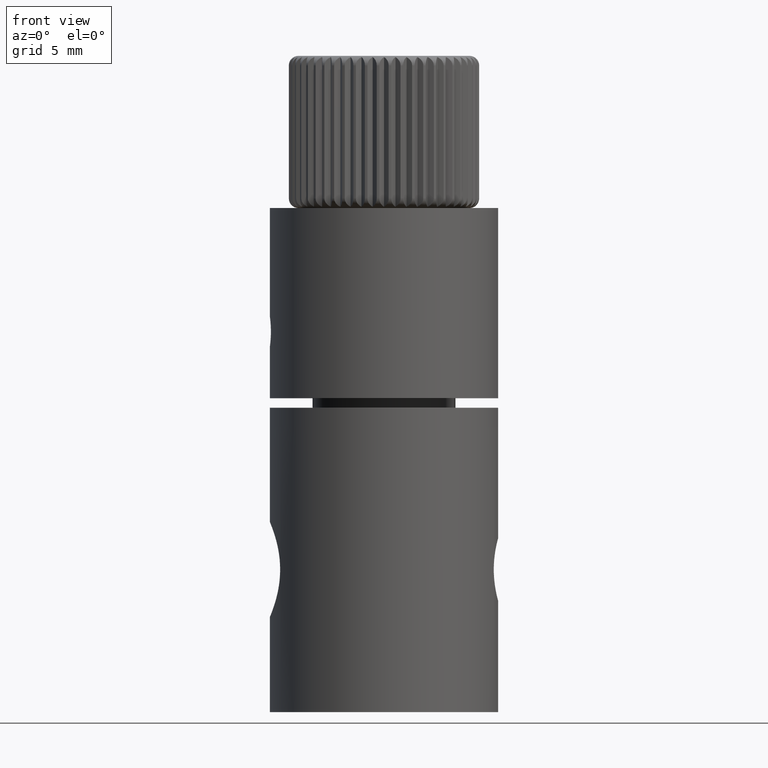
[diagram: clean part render]
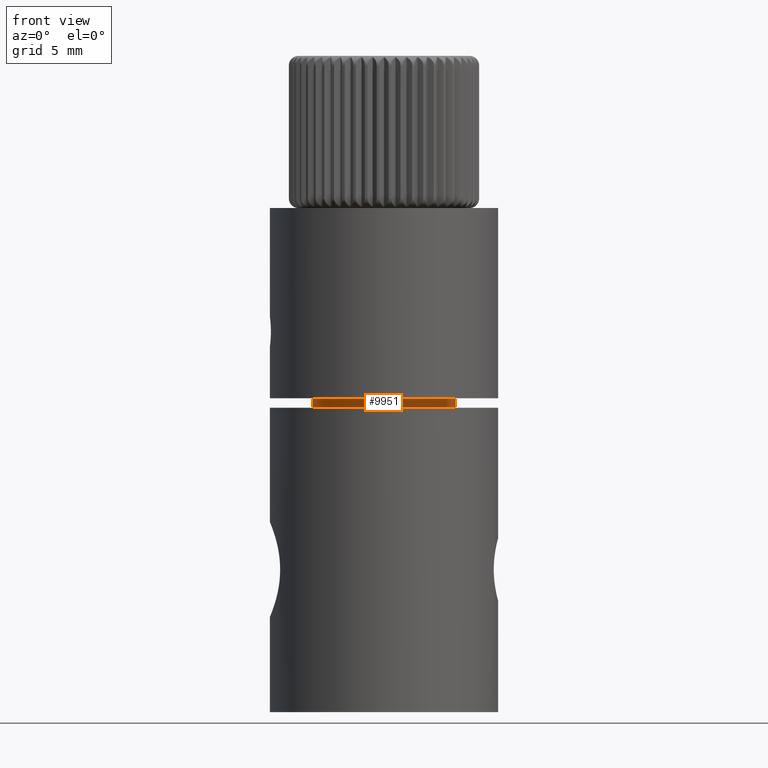
[diagram: same view with one face highlighted and labeled with its STEP entity id]
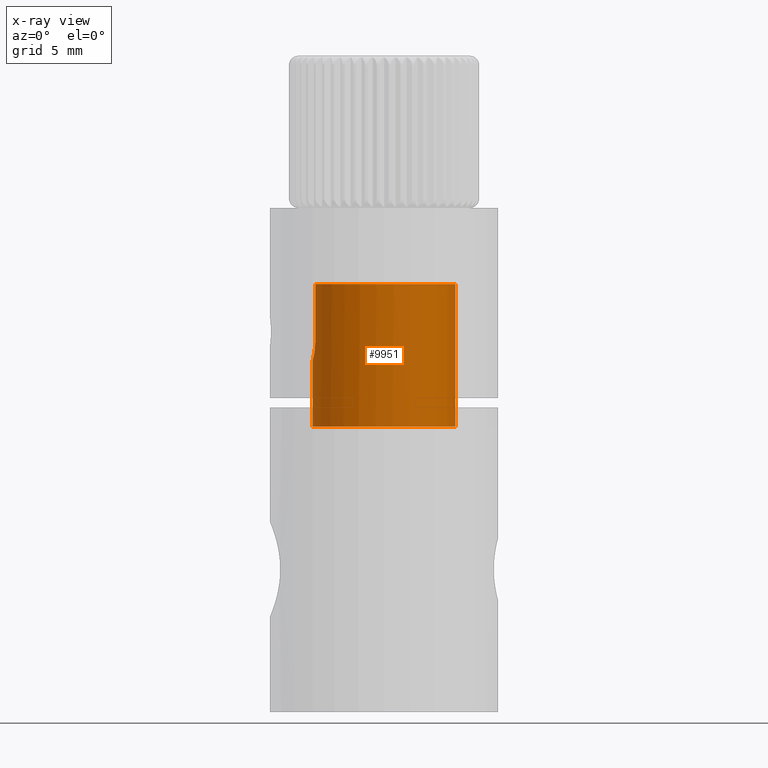
[diagram: x-ray of the same camera — body ghosted, the highlighted face saturated]
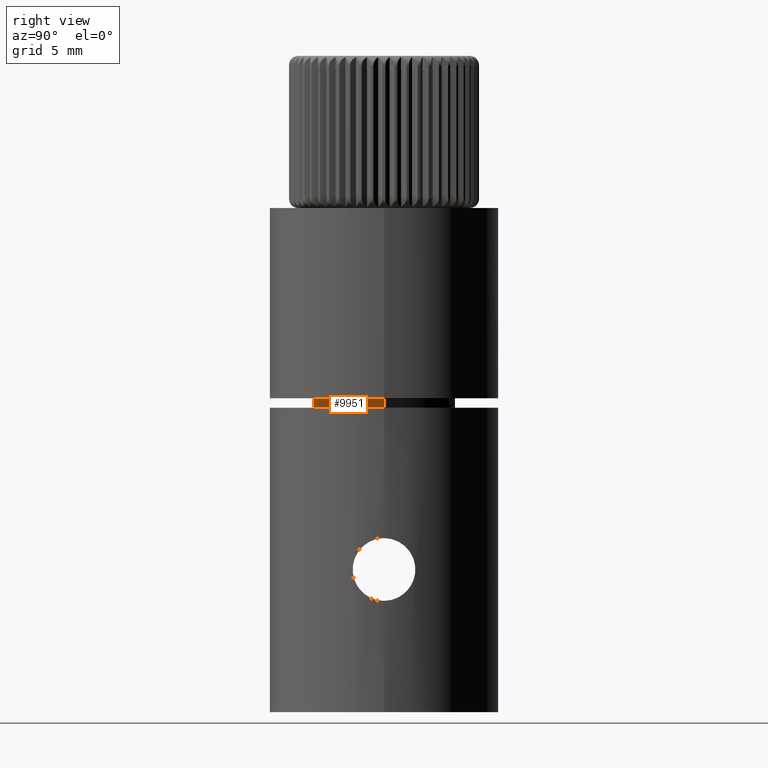
[diagram: same view with one face highlighted and labeled with its STEP entity id]
A machine part, front view. The second image highlights one B-rep face of the part: STEP entity #9951.
The next image is the same camera in x-ray: the body ghosted, the highlighted face saturated — about 1% of this face is hidden behind the body in this view.
A second angle (right view) of the same face is appended — the face is thin or edge-on in the first view.
In plain terms, the highlighted cylindrical surface (partial cylindrical patch) has radius 3.75 mm, axis along (-0, -0, -1).
Its self-contained STEP definition (entity closure, byte-faithful):
#183 = AXIS2_PLACEMENT_3D ( 'NONE', #8876, #10571, #9910 ) ;
#501 = EDGE_CURVE ( 'NONE', #7077, #6086, #3677, .T. ) ;
#827 = CARTESIAN_POINT ( 'NONE',  ( -3.647214717622833100, -0.8920625803220753000, 18.97787512190352600 ) ) ;
#852 = CARTESIAN_POINT ( 'NONE',  ( -3.749999999999997300, 0.0000000000000000000, 15.00000000000000000 ) ) ;
#853 = LINE ( 'NONE', #8708, #7245 ) ;
#1820 = AXIS2_PLACEMENT_3D ( 'NONE', #8958, #4755, #2291 ) ;
#1866 = CYLINDRICAL_SURFACE ( 'NONE', #1820, 3.749999999999997300 ) ;
#2117 = CIRCLE ( 'NONE', #3729, 3.749999999999996900 ) ;
#2291 = DIRECTION ( 'NONE',  ( -1.000000000000000000, 0.0000000000000000000, 0.0000000000000000000 ) ) ;
#2411 = CARTESIAN_POINT ( 'NONE',  ( -3.614208073700237100, -1.000000000000000000, 22.50000000000000000 ) ) ;
#2490 = CARTESIAN_POINT ( 'NONE',  ( -3.614208073700238000, -1.000000000000000200, 19.23463870924432200 ) ) ;
#2518 = EDGE_CURVE ( 'NONE', #6086, #5244, #853, .T. ) ;
#2984 = CARTESIAN_POINT ( 'NONE',  ( 3.749999999999997300, 4.592425496802571000E-016, -1.657192075796718000 ) ) ;
#3601 = EDGE_CURVE ( 'NONE', #10554, #10135, #8690, .T. ) ;
#3643 = CARTESIAN_POINT ( 'NONE',  ( -3.614208073700237100, -1.000000000000000000, 19.50000000000000000 ) ) ;
#3677 = B_SPLINE_CURVE_WITH_KNOTS ( 'NONE', 3,
 ( #9220, #4107, #9940, #4038, #5192, #827, #2490, #11080 ),
 .UNSPECIFIED., .F., .F.,
 ( 4, 2, 2, 4 ),
 ( 0.001570761871664251600, 0.001962993263202366700, 0.002355224654740481400, 0.003139687437816710800 ),
 .UNSPECIFIED. ) ;
#3729 = AXIS2_PLACEMENT_3D ( 'NONE', #6685, #10983, #5875 ) ;
#4038 = CARTESIAN_POINT ( 'NONE',  ( -3.717854546248310100, -0.5049173250389881200, 18.62688647372285900 ) ) ;
#4107 = CARTESIAN_POINT ( 'NONE',  ( -3.749999999999975100, -0.1310145707168422200, 18.50000000000008500 ) ) ;
#4755 = DIRECTION ( 'NONE',  ( -0.0000000000000000000, -0.0000000000000000000, -1.000000000000000000 ) ) ;
#4797 = VECTOR ( 'NONE', #9309, 1000.000000000000000 ) ;
#5192 = CARTESIAN_POINT ( 'NONE',  ( -3.700473217319293800, -0.6147037325545191600, 18.70047712348667800 ) ) ;
#5244 = VERTEX_POINT ( 'NONE', #2411 ) ;
#5375 = ORIENTED_EDGE ( 'NONE', *, *, #6602, .T. ) ;
#5412 = ORIENTED_EDGE ( 'NONE', *, *, #10735, .F. ) ;
#5875 = DIRECTION ( 'NONE',  ( -1.000000000000000000, 0.0000000000000000000, 0.0000000000000000000 ) ) ;
#6086 = VERTEX_POINT ( 'NONE', #3643 ) ;
#6569 = ORIENTED_EDGE ( 'NONE', *, *, #3601, .F. ) ;
#6602 = EDGE_CURVE ( 'NONE', #7077, #10135, #7047, .T. ) ;
#6685 = CARTESIAN_POINT ( 'NONE',  ( 0.0000000000000000000, 0.0000000000000000000, 22.50000000000000000 ) ) ;
#6812 = ORIENTED_EDGE ( 'NONE', *, *, #2518, .F. ) ;
#7047 = LINE ( 'NONE', #9381, #4797 ) ;
#7051 = DIRECTION ( 'NONE',  ( 0.0000000000000000000, 0.0000000000000000000, 1.000000000000000000 ) ) ;
#7077 = VERTEX_POINT ( 'NONE', #10226 ) ;
#7245 = VECTOR ( 'NONE', #7051, 1000.000000000000000 ) ;
#8686 = VERTEX_POINT ( 'NONE', #10349 ) ;
#8690 = CIRCLE ( 'NONE', #183, 3.749999999999997300 ) ;
#8708 = CARTESIAN_POINT ( 'NONE',  ( -3.614208073700237100, -1.000000000000000000, -1.657192075796718000 ) ) ;
#8876 = CARTESIAN_POINT ( 'NONE',  ( 0.0000000000000000000, 0.0000000000000000000, 15.00000000000000000 ) ) ;
#8958 = CARTESIAN_POINT ( 'NONE',  ( 0.0000000000000000000, 0.0000000000000000000, -1.657192075796718000 ) ) ;
#9077 = EDGE_CURVE ( 'NONE', #8686, #5244, #2117, .T. ) ;
#9220 = CARTESIAN_POINT ( 'NONE',  ( -3.750000000000974300, -3.923107074106375700E-013, 18.49999999999633400 ) ) ;
#9309 = DIRECTION ( 'NONE',  ( -0.0000000000000000000, -0.0000000000000000000, -1.000000000000000000 ) ) ;
#9381 = CARTESIAN_POINT ( 'NONE',  ( -3.749999999999997300, 0.0000000000000000000, -1.657192075796718000 ) ) ;
#9384 = VECTOR ( 'NONE', #9699, 1000.000000000000000 ) ;
#9668 = LINE ( 'NONE', #2984, #9384 ) ;
#9699 = DIRECTION ( 'NONE',  ( -0.0000000000000000000, -0.0000000000000000000, -1.000000000000000000 ) ) ;
#9910 = DIRECTION ( 'NONE',  ( -1.000000000000000000, 0.0000000000000000000, 0.0000000000000000000 ) ) ;
#9922 = ORIENTED_EDGE ( 'NONE', *, *, #9077, .T. ) ;
#9940 = CARTESIAN_POINT ( 'NONE',  ( -3.742811293306081800, -0.2621975493482079400, 18.52607947962453500 ) ) ;
#9951 = ADVANCED_FACE ( 'NONE', ( #10213 ), #1866, .T. ) ;
#10135 = VERTEX_POINT ( 'NONE', #852 ) ;
#10156 = CARTESIAN_POINT ( 'NONE',  ( 3.749999999999997300, 4.592425496802571000E-016, 15.00000000000000000 ) ) ;
#10213 = FACE_OUTER_BOUND ( 'NONE', #10221, .T. ) ;
#10221 = EDGE_LOOP ( 'NONE', ( #5412, #9922, #6812, #10799, #5375, #6569 ) ) ;
#10226 = CARTESIAN_POINT ( 'NONE',  ( -3.750000000000974300, -3.923107074106375700E-013, 18.49999999999633400 ) ) ;
#10349 = CARTESIAN_POINT ( 'NONE',  ( 3.749999999999996900, 4.592425496802570000E-016, 22.50000000000000000 ) ) ;
#10554 = VERTEX_POINT ( 'NONE', #10156 ) ;
#10571 = DIRECTION ( 'NONE',  ( -0.0000000000000000000, -0.0000000000000000000, -1.000000000000000000 ) ) ;
#10735 = EDGE_CURVE ( 'NONE', #8686, #10554, #9668, .T. ) ;
#10799 = ORIENTED_EDGE ( 'NONE', *, *, #501, .F. ) ;
#10983 = DIRECTION ( 'NONE',  ( -0.0000000000000000000, -0.0000000000000000000, -1.000000000000000000 ) ) ;
#11080 = CARTESIAN_POINT ( 'NONE',  ( -3.614208073700237100, -1.000000000000000000, 19.50000000000000000 ) ) ;